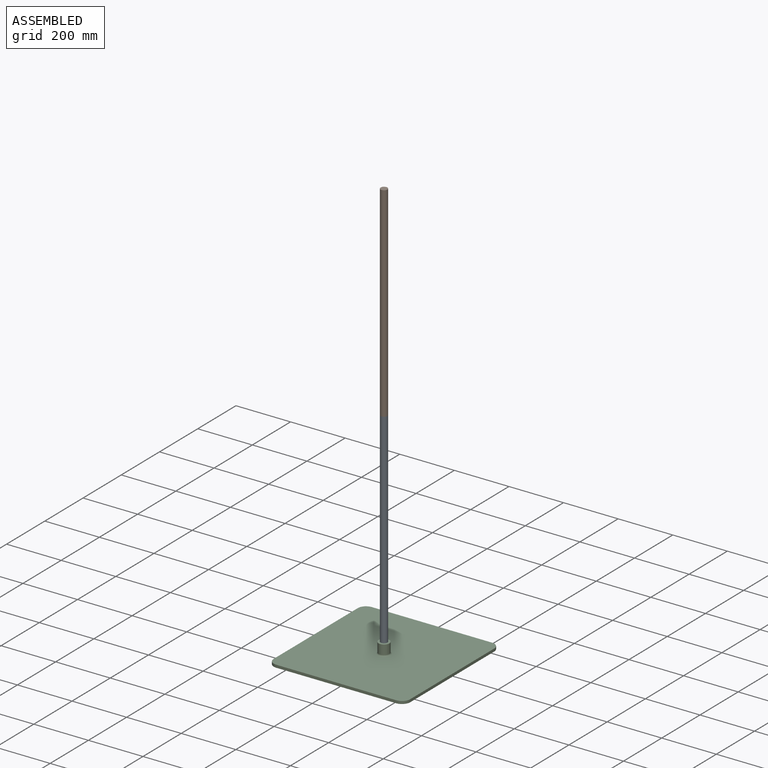
[diagram: assembled view]
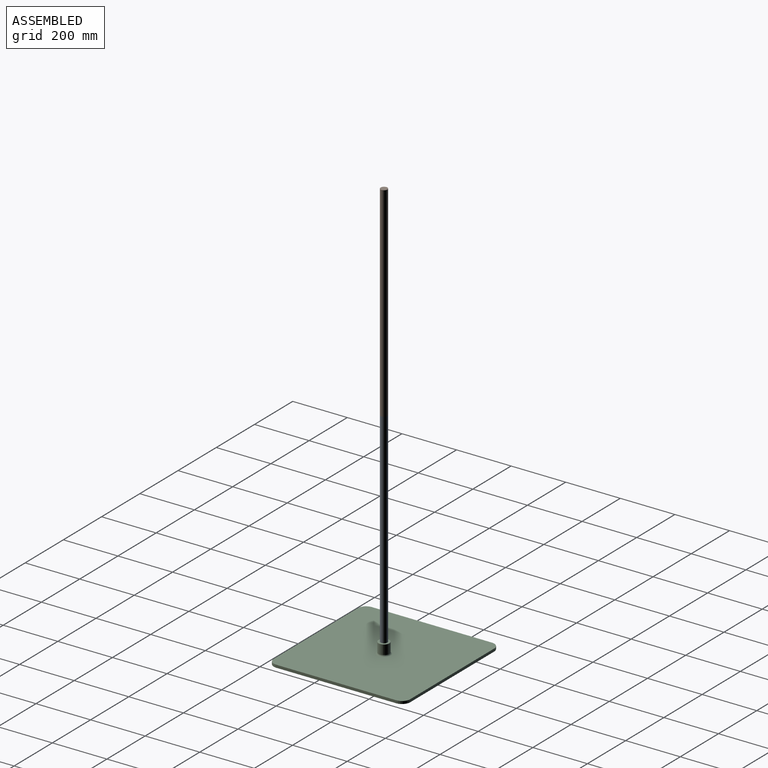
[diagram: assembled view, second angle]
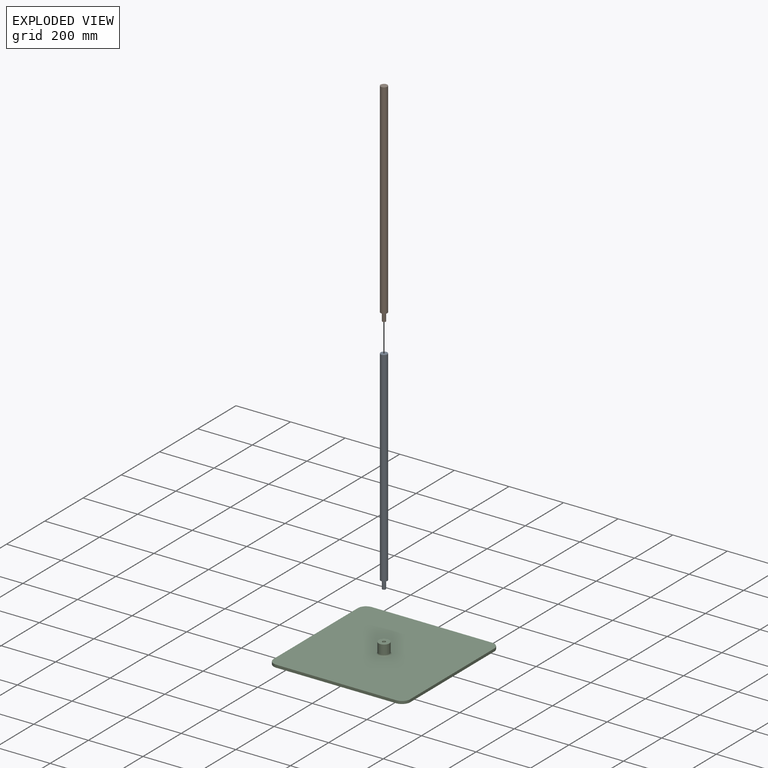
[diagram: exploded view]
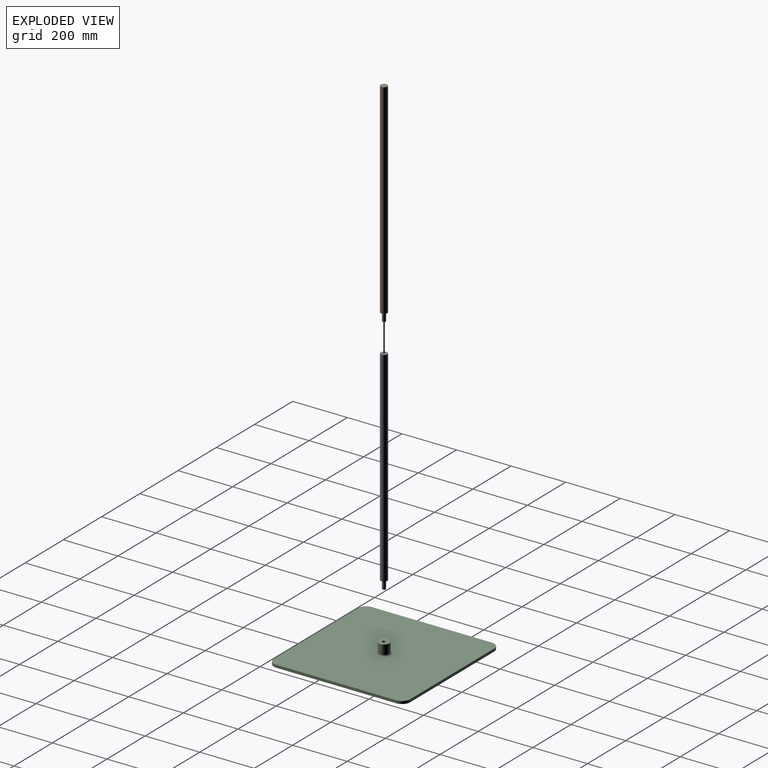
[diagram: exploded view, second angle]
ASSEMBLY  parts=3 mates=2
PART A: 5 faces, bbox 25x25x780 mm
  f0: cylinder r=12.5mm len=750mm, axis (0,0,-1), area 58904.9mm2, adj f1,f2
  f1: plane 25x25mm, normal (0,0,1), area 368.2mm2, adj f0,f3
  f2: plane 25x25mm, normal (0,0,-1), area 490.9mm2, adj f0
  f3: cylinder r=6.25mm len=30mm, axis (0,0,-1), area 1178.1mm2, adj f1,f4
  f4: plane 12.5x12.5mm, normal (0,0,1), area 122.7mm2, adj f3
PART B: same geometry as A
PART C: 16 faces, bbox 500x500x50 mm
  f0: plane 440x10mm, normal (1,0,0), area 4400mm2, adj f4,f5,f6,f8
  f1: plane 440x10mm, normal (0,1,0), area 4400mm2, adj f4,f5,f6,f7
  f2: plane 440x10mm, normal (-1,0,0), area 4400mm2, adj f4,f5,f7,f9
  f3: plane 440x10mm, normal (0,-1,0), area 4400mm2, adj f4,f5,f8,f9
  f4: plane 500x500mm, normal (0,0,1), area 247263.9mm2, adj f0,f1,f2,f3,f6,f7,f8,f9
  f5: plane 500x500mm, normal (0,0,-1), area 249227.4mm2, adj f0,f1,f2,f3,f6,f7,f8,f9
  f6: cylinder r=30mm len=30mm, axis (0,0,1), area 471.2mm2, adj f0,f1,f4,f5
  f7: cylinder r=30mm len=30mm, axis (0,0,-1), area 471.2mm2, adj f1,f2,f4,f5
  f8: cylinder r=30mm len=30mm, axis (0,0,-1), area 471.2mm2, adj f0,f3,f4,f5
  f9: cylinder r=30mm len=30mm, axis (0,0,1), area 471.2mm2, adj f2,f3,f4,f5
  f10: cylinder r=20mm len=40mm, axis (0,0,-1), area 4272.6mm2, adj f14,f15
  f11: plane 38x38mm, normal (0,0,1), area 1011.4mm2, adj f12,f14
  f12: cylinder r=6.25mm len=30mm, axis (0,0,1), area 1178.1mm2, adj f11,f13
  f13: plane 12.5x12.5mm, normal (0,0,1), area 122.7mm2, adj f12
  f14: torus R=19mm, axis (0,0,1), area 193.8mm2, adj f10,f11
  f15: torus R=25mm, axis (0,0,1), area 1076.6mm2, adj f4,f10
PLACE A rot(axis=(0,-1,0),180deg) t=(-477.63,0.58,-2926.74)mm
PLACE B rot(axis=(0,-1,0),180deg) t=(-477.63,0.58,-2176.74)mm
PLACE C t=(-477.63,0.58,-3346.74)mm
MATE fastened C.f12 <-> A.f0  axis (0,0,1) through (-477.63,0.58,-3301.74)mm
MATE fastened A.f0 <-> B.f3  axis (0,0,1) through (-477.63,0.58,-2551.74)mm
